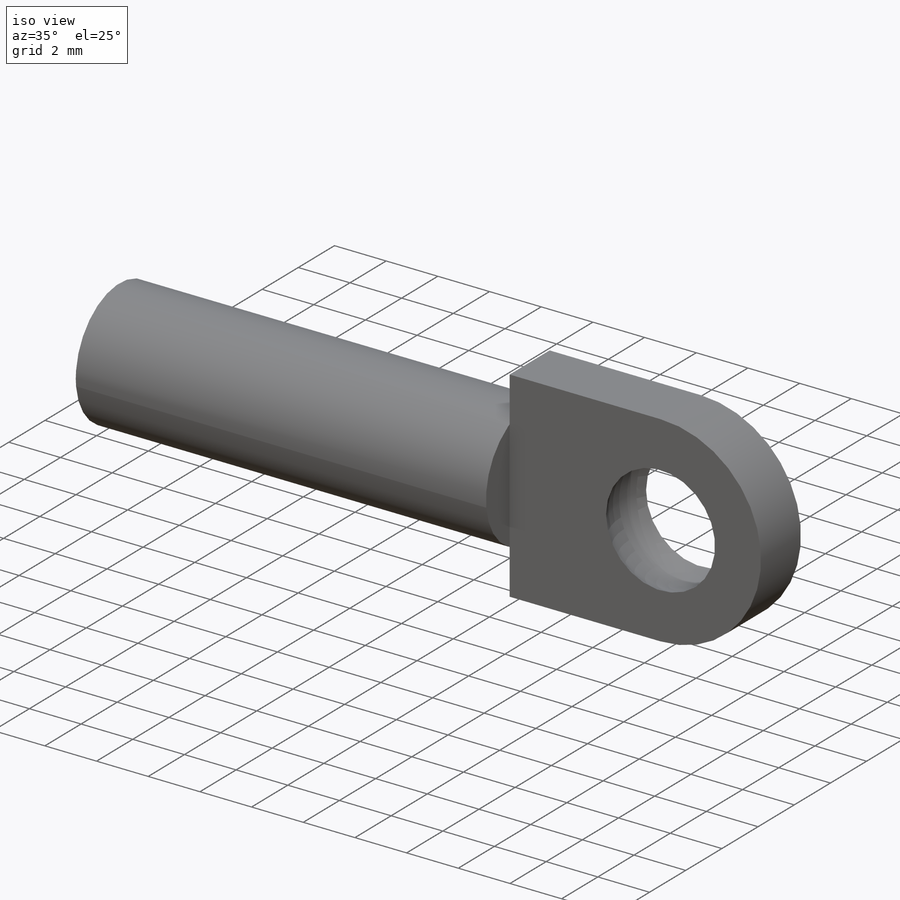
[diagram: iso view]
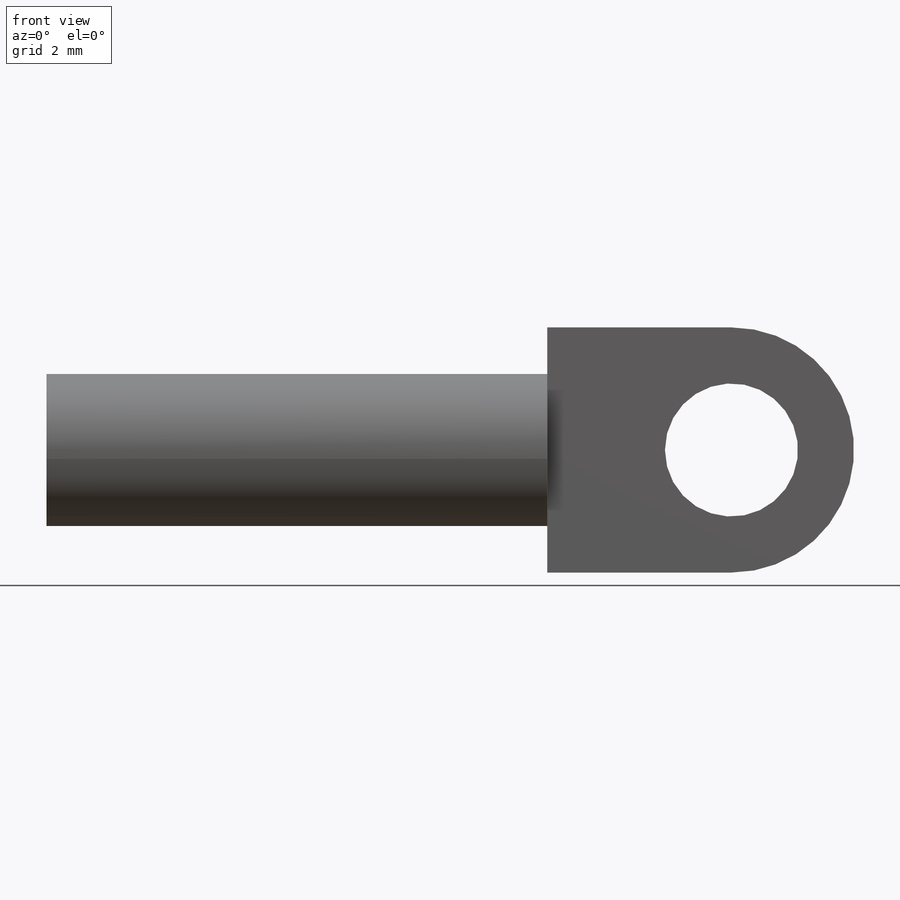
[diagram: front view]
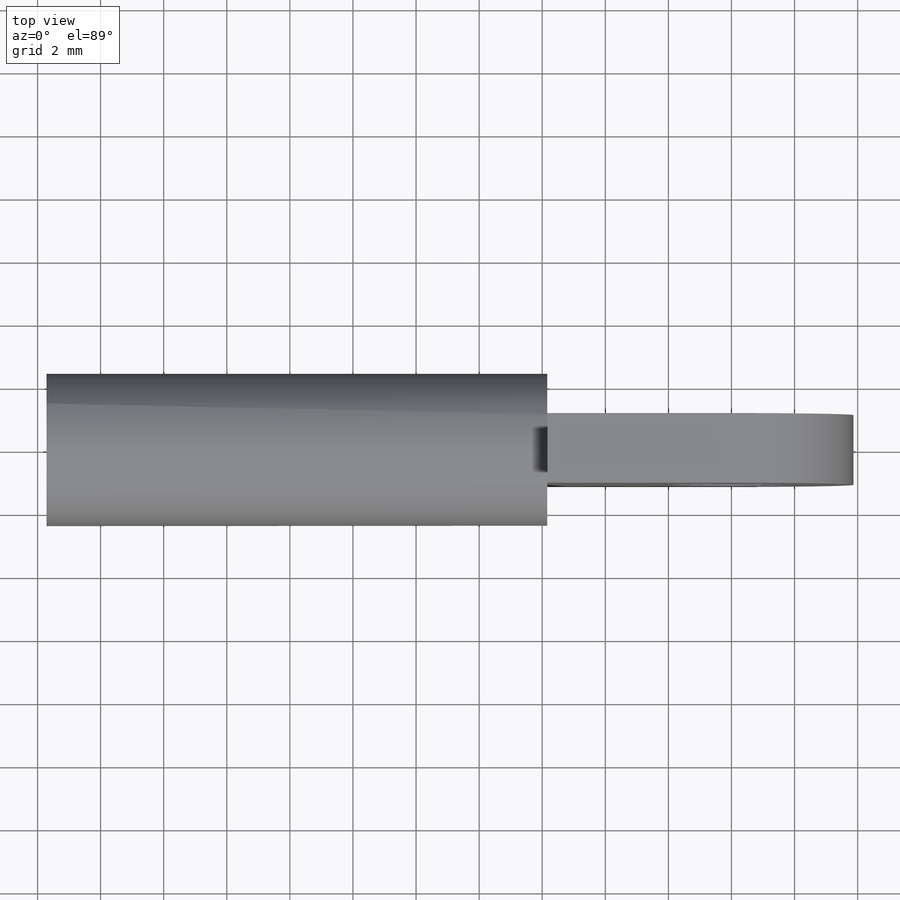
[diagram: top view]
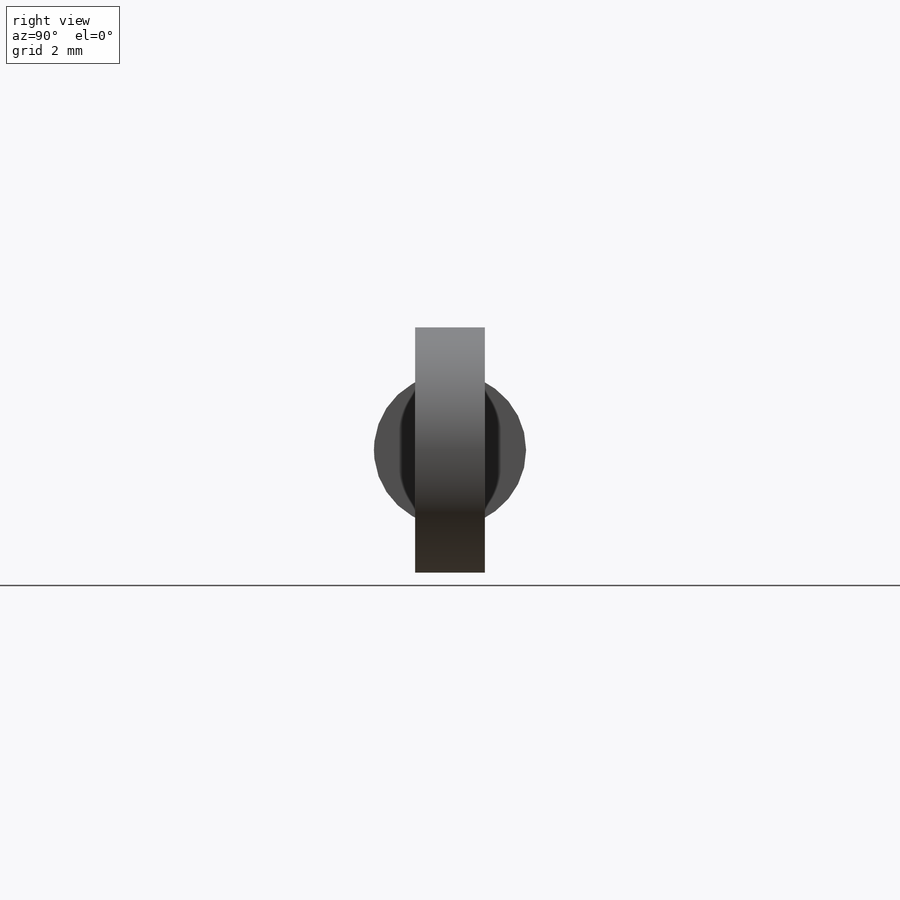
[diagram: right view]
SOLIDWORKS PART (.sldprt)
format: sldprt  version: not decoded by parser v0  size: 173,568 bytes
history: native  units: mm
features: sketch x4, extrude x2, material x1, cut_extrude x1, plane x1, cut_revolve x1 (+12 scaffold rows collapsed)
feature tree (22):
  scaffold x12  (default folders/planes/origin — collapsed)
  material  "Material <not specified>"
  sketch  "Sketch1"  dims[D1=5.842mm]
  extrude  "Extrude1"  Depth=1.1049mm
  sketch  "Sketch2"  dims[D1=~1.772271mm]
  extrude  "Extrude2"  Depth=15.875mm
  sketch  "Sketch3"  dims[D1=~1.262477mm]
  cut_extrude  "Extrude3"  Depth=14.859mm
  plane  "Plane1"
  sketch  "Sketch6"  dims[D1=~2.213794mm]
  cut_revolve  "Cut-Revolve1"  Angle=360deg
decode coverage: 8 of 8 modeling features carry decoded parameters
note: ~ marks probable driven/reference dimensions
note: suppression state not decoded; provenance and decode notes live in map.json
